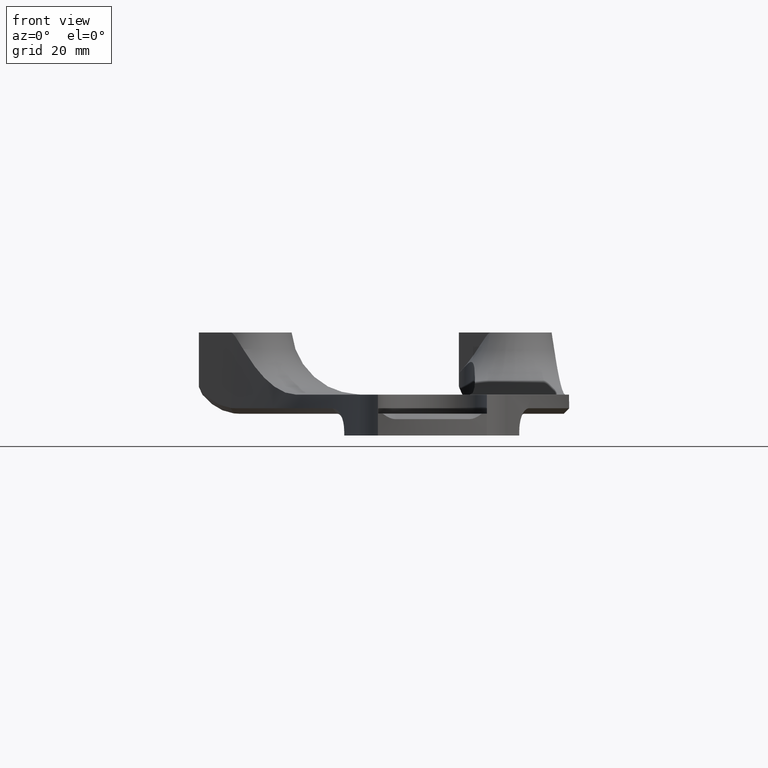
[diagram: clean part render]
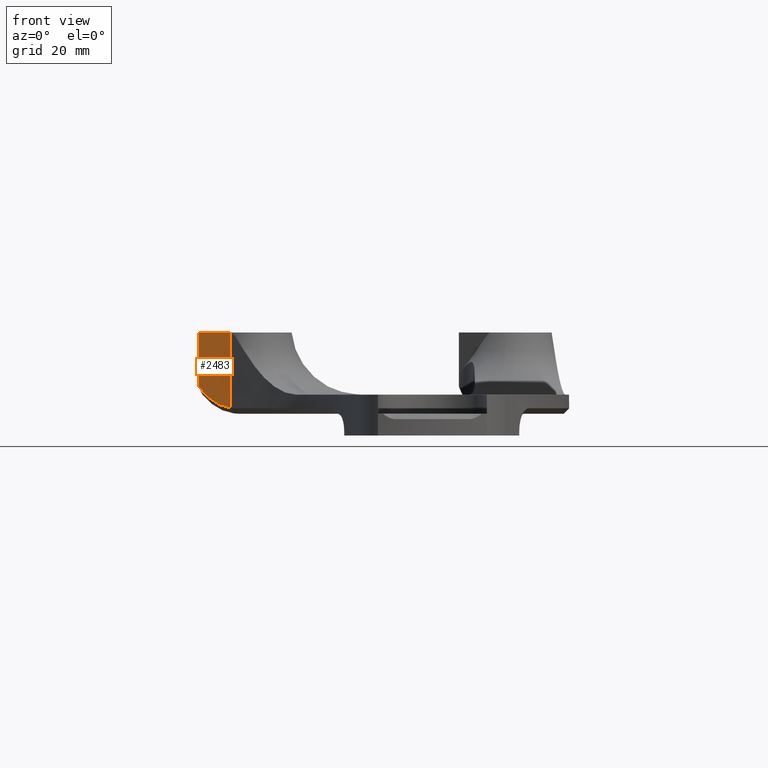
[diagram: same view with one face highlighted and labeled with its STEP entity id]
A machine part, front view. The second image highlights one B-rep face of the part: STEP entity #2483.
In plain terms, the highlighted planar face has unit normal (0.6428, 0.766, -0).
Its self-contained STEP definition (entity closure, byte-faithful):
#14 = VERTEX_POINT ( 'NONE', #2285 ) ;
#26 = CARTESIAN_POINT ( 'NONE',  ( -36.11516636456869400, 30.30422277641536900, 12.69999999999999900 ) ) ;
#116 = CARTESIAN_POINT ( 'NONE',  ( -42.82188437035108600, 35.93182738147729100, 147.7549891739016900 ) ) ;
#298 = FACE_OUTER_BOUND ( 'NONE', #1630, .T. ) ;
#350 = VECTOR ( 'NONE', #535, 1000.000000000000000 ) ;
#359 = CARTESIAN_POINT ( 'NONE',  ( -42.82188437035108600, 35.93182738147729100, 14.89999999999999700 ) ) ;
#429 = DIRECTION ( 'NONE',  ( -0.6427876096865323700, -0.7660444431189839000, 0.0000000000000000000 ) ) ;
#535 = DIRECTION ( 'NONE',  ( 0.7660444431189839000, -0.6427876096865323700, 0.0000000000000000000 ) ) ;
#558 = LINE ( 'NONE', #691, #3326 ) ;
#606 = AXIS2_PLACEMENT_3D ( 'NONE', #26, #429, #2541 ) ;
#691 = CARTESIAN_POINT ( 'NONE',  ( -42.82188437035108600, 35.93182738147729100, 147.7549891739016900 ) ) ;
#783 = VECTOR ( 'NONE', #2440, 1000.000000000000000 ) ;
#840 = ORIENTED_EDGE ( 'NONE', *, *, #3062, .T. ) ;
#931 = DIRECTION ( 'NONE',  ( -0.7660444431189839000, 0.6427876096865323700, 0.0000000000000000000 ) ) ;
#958 = EDGE_CURVE ( 'NONE', #1789, #2770, #1862, .T. ) ;
#1464 = DIRECTION ( 'NONE',  ( -0.0000000000000000000, -0.0000000000000000000, -1.000000000000000000 ) ) ;
#1529 = CARTESIAN_POINT ( 'NONE',  ( -36.98462571378443900, 31.03378579566592800, 1.055182344020855200 ) ) ;
#1591 = ORIENTED_EDGE ( 'NONE', *, *, #1912, .T. ) ;
#1630 = EDGE_LOOP ( 'NONE', ( #840, #1591, #2357, #1962 ) ) ;
#1789 = VERTEX_POINT ( 'NONE', #2649 ) ;
#1862 = LINE ( 'NONE', #3441, #783 ) ;
#1883 = CARTESIAN_POINT ( 'NONE',  ( -42.82188437035108600, 35.93182738147729100, 14.89999999999999700 ) ) ;
#1912 = EDGE_CURVE ( 'NONE', #14, #2770, #3128, .T. ) ;
#1962 = ORIENTED_EDGE ( 'NONE', *, *, #2264, .F. ) ;
#2264 = EDGE_CURVE ( 'NONE', #2569, #1789, #3124, .T. ) ;
#2285 = CARTESIAN_POINT ( 'NONE',  ( -42.82188437035108600, 35.93182738147729100, 4.938556835227092100 ) ) ;
#2357 = ORIENTED_EDGE ( 'NONE', *, *, #958, .F. ) ;
#2440 = DIRECTION ( 'NONE',  ( -0.0000000000000000000, -0.0000000000000000000, -1.000000000000000000 ) ) ;
#2451 = AXIS2_PLACEMENT_3D ( 'NONE', #116, #2496, #931 ) ;
#2483 = ADVANCED_FACE ( 'NONE', ( #298 ), #2705, .F. ) ;
#2496 = DIRECTION ( 'NONE',  ( 0.6427876096865323700, 0.7660444431189839000, -0.0000000000000000000 ) ) ;
#2541 = DIRECTION ( 'NONE',  ( -0.7660444431189837900, 0.6427876096865324800, 0.0000000000000000000 ) ) ;
#2569 = VERTEX_POINT ( 'NONE', #1883 ) ;
#2649 = CARTESIAN_POINT ( 'NONE',  ( -36.98462571378443200, 31.03378579566592100, 14.90000000000000000 ) ) ;
#2705 = PLANE ( 'NONE',  #2451 ) ;
#2770 = VERTEX_POINT ( 'NONE', #1529 ) ;
#3062 = EDGE_CURVE ( 'NONE', #2569, #14, #558, .T. ) ;
#3124 = LINE ( 'NONE', #359, #350 ) ;
#3128 = CIRCLE ( 'NONE', #606, 11.69999999999998700 ) ;
#3326 = VECTOR ( 'NONE', #1464, 1000.000000000000000 ) ;
#3441 = CARTESIAN_POINT ( 'NONE',  ( -36.98462571378443900, 31.03378579566592800, 147.7549891739016900 ) ) ;